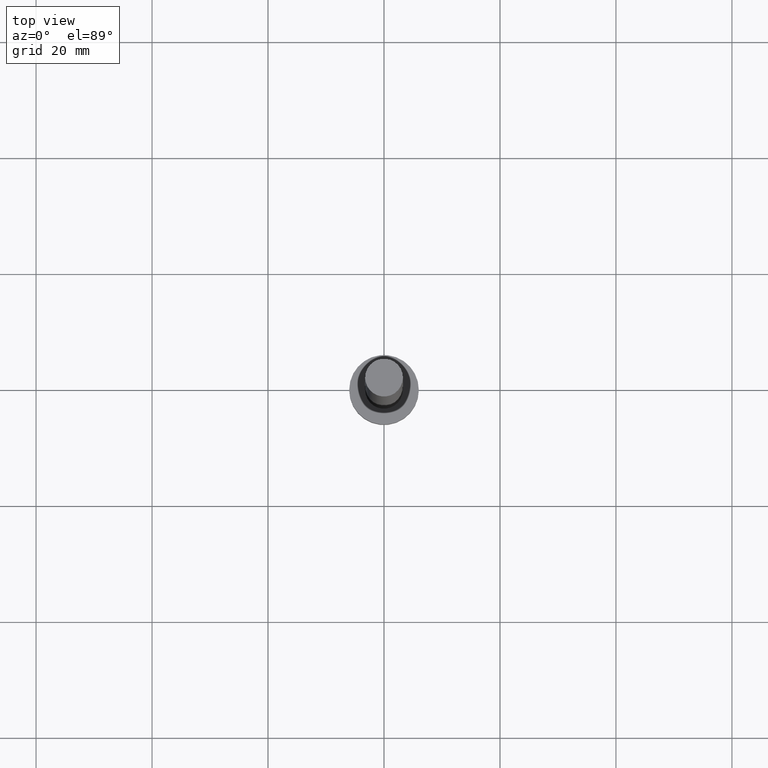
[diagram: clean part render]
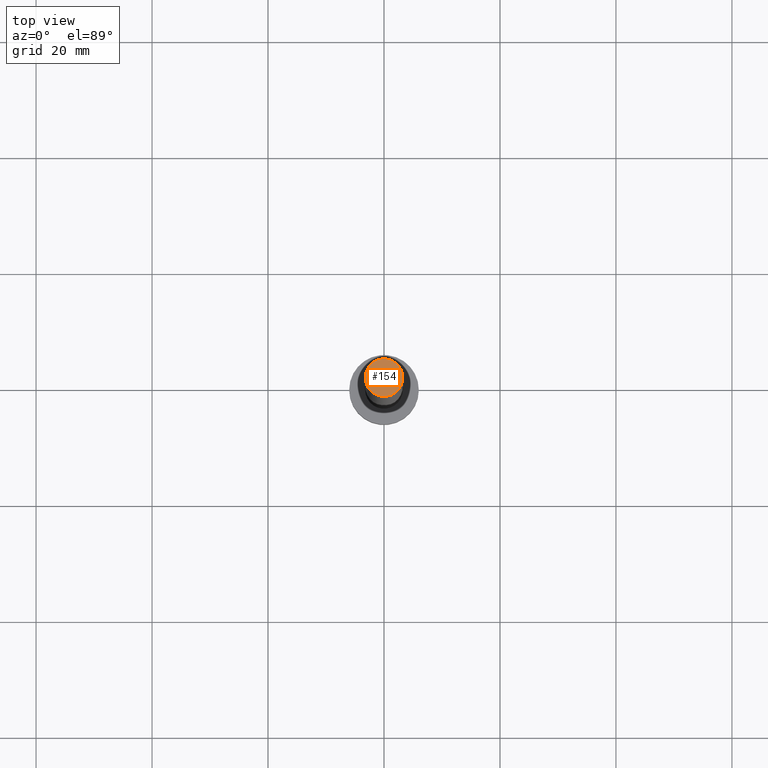
[diagram: same view with one face highlighted and labeled with its STEP entity id]
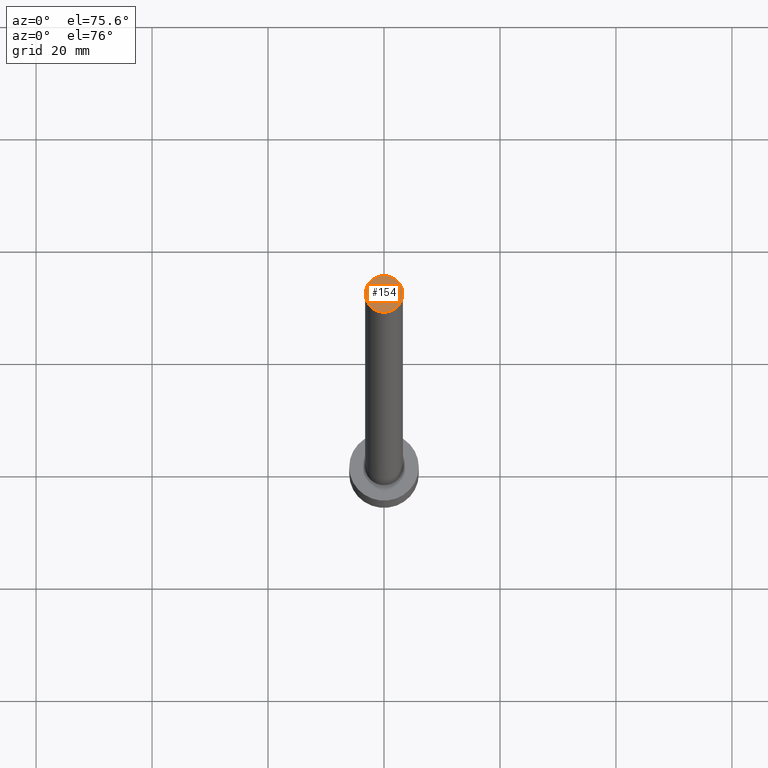
[diagram: same view with one face highlighted and labeled with its STEP entity id]
A machine part, top view. The second image highlights one B-rep face of the part: STEP entity #154.
A second angle (auxiliary view) of the same face is appended — the face is thin or edge-on in the first view.
In plain terms, the highlighted planar face has unit normal (0, 0, 1).
Its self-contained STEP definition (entity closure, byte-faithful):
#7 = VERTEX_POINT ( 'NONE', #46 ) ;
#11 = ORIENTED_EDGE ( 'NONE', *, *, #203, .T. ) ;
#46 = CARTESIAN_POINT ( 'NONE',  ( -3.250000000000000444, 0.000000000000000000, 125.0000000000000000 ) ) ;
#49 = VERTEX_POINT ( 'NONE', #202 ) ;
#55 = DIRECTION ( 'NONE',  ( 0.000000000000000000, 0.000000000000000000, 1.000000000000000000 ) ) ;
#76 = EDGE_LOOP ( 'NONE', ( #11, #146 ) ) ;
#85 = CIRCLE ( 'NONE', #93, 3.250000000000000444 ) ;
#93 = AXIS2_PLACEMENT_3D ( 'NONE', #116, #55, #117 ) ;
#102 = FACE_OUTER_BOUND ( 'NONE', #76, .T. ) ;
#116 = CARTESIAN_POINT ( 'NONE',  ( 0.000000000000000000, 0.000000000000000000, 125.0000000000000000 ) ) ;
#117 = DIRECTION ( 'NONE',  ( 1.000000000000000000, 0.000000000000000000, 0.000000000000000000 ) ) ;
#128 = DIRECTION ( 'NONE',  ( 0.000000000000000000, 0.000000000000000000, 1.000000000000000000 ) ) ;
#134 = EDGE_CURVE ( 'NONE', #49, #7, #135, .T. ) ;
#135 = CIRCLE ( 'NONE', #230, 3.250000000000000444 ) ;
#141 = CARTESIAN_POINT ( 'NONE',  ( 0.000000000000000000, 0.000000000000000000, 125.0000000000000000 ) ) ;
#146 = ORIENTED_EDGE ( 'NONE', *, *, #134, .T. ) ;
#148 = DIRECTION ( 'NONE',  ( 1.000000000000000000, 0.000000000000000000, -0.000000000000000000 ) ) ;
#154 = ADVANCED_FACE ( 'NONE', ( #102 ), #158, .T. ) ;
#158 = PLANE ( 'NONE',  #195 ) ;
#195 = AXIS2_PLACEMENT_3D ( 'NONE', #141, #128, #148 ) ;
#202 = CARTESIAN_POINT ( 'NONE',  ( 3.250000000000000444, 3.980102097228898231E-16, 125.0000000000000000 ) ) ;
#203 = EDGE_CURVE ( 'NONE', #7, #49, #85, .T. ) ;
#217 = DIRECTION ( 'NONE',  ( 0.000000000000000000, 0.000000000000000000, 1.000000000000000000 ) ) ;
#230 = AXIS2_PLACEMENT_3D ( 'NONE', #249, #217, #252 ) ;
#249 = CARTESIAN_POINT ( 'NONE',  ( 0.000000000000000000, 0.000000000000000000, 125.0000000000000000 ) ) ;
#252 = DIRECTION ( 'NONE',  ( 1.000000000000000000, 0.000000000000000000, 0.000000000000000000 ) ) ;